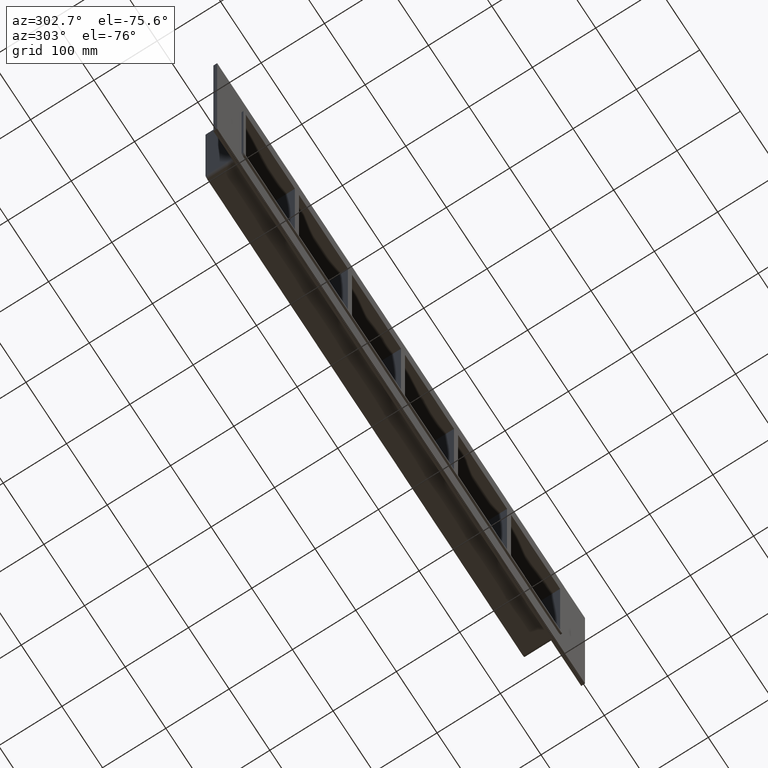
[diagram: clean part render]
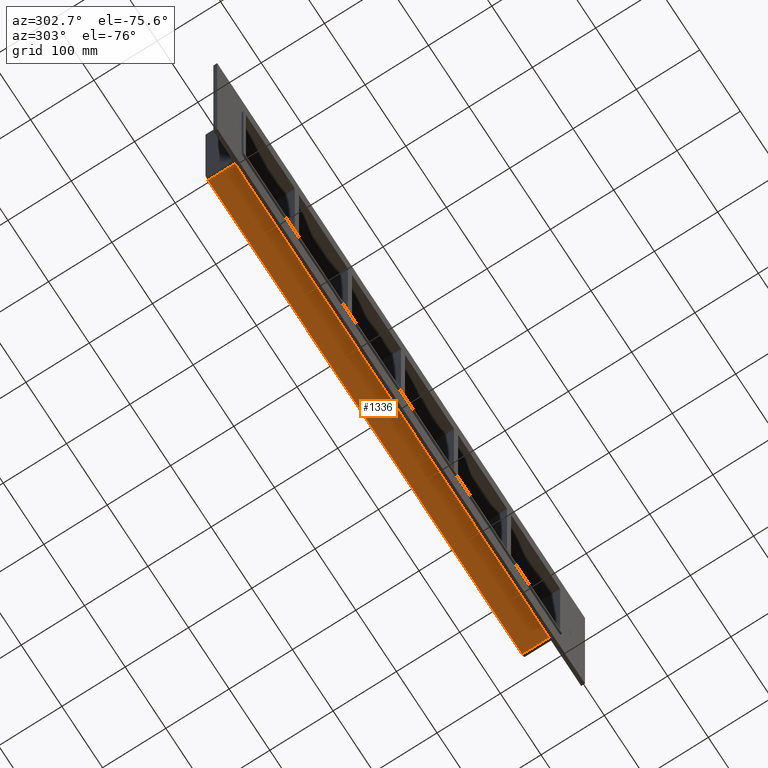
[diagram: same view with one face highlighted and labeled with its STEP entity id]
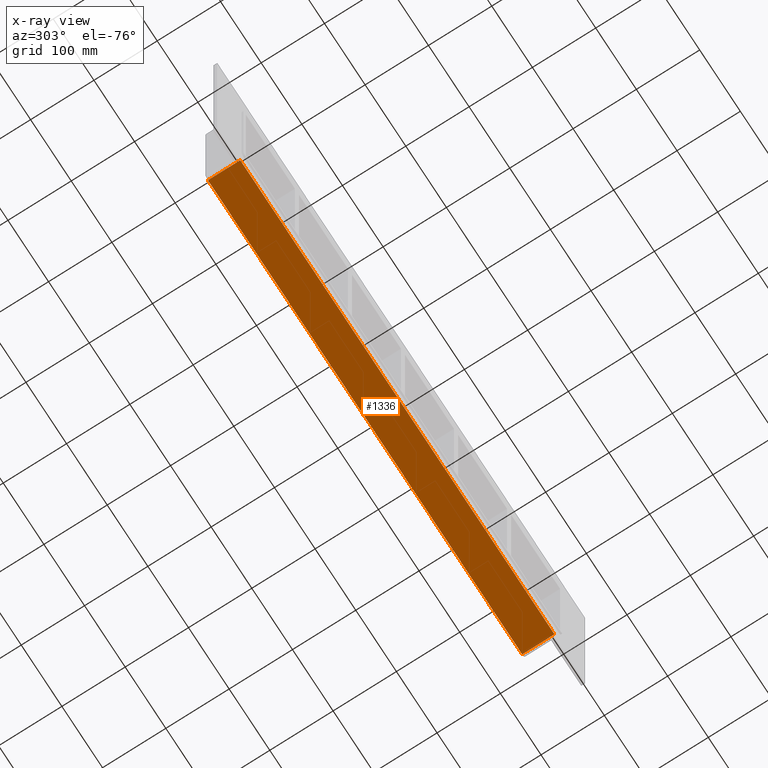
[diagram: x-ray of the same camera — body ghosted, the highlighted face saturated]
A machine part, auxiliary view. The second image highlights one B-rep face of the part: STEP entity #1336.
The next image is the same camera in x-ray: the body ghosted, the highlighted face saturated — about 0% of this face is hidden behind the body in this view.
In plain terms, the highlighted planar face has unit normal (0, 0, -1).
Its self-contained STEP definition (entity closure, byte-faithful):
#807=CARTESIAN_POINT('',(-386.50000000000011,6.000000000000001,-115.0));
#808=VERTEX_POINT('',#807);
#818=CARTESIAN_POINT('',(386.50000000000006,6.000000000000001,-115.0));
#819=VERTEX_POINT('',#818);
#820=CARTESIAN_POINT('',(386.50000000000006,6.000000000000001,-115.0));
#821=DIRECTION('',(-1.0,0.0,0.0));
#822=VECTOR('',#821,773.00000000000023);
#823=LINE('',#820,#822);
#824=EDGE_CURVE('',#819,#808,#823,.T.);
#1245=CARTESIAN_POINT('',(386.50000000000006,57.0,-115.0));
#1246=VERTEX_POINT('',#1245);
#1247=CARTESIAN_POINT('',(386.50000000000006,6.000000000000001,-115.0));
#1248=DIRECTION('',(0.0,1.0,0.0));
#1249=VECTOR('',#1248,51.0);
#1250=LINE('',#1247,#1249);
#1251=EDGE_CURVE('',#819,#1246,#1250,.T.);
#1313=CARTESIAN_POINT('',(392.50000000000006,0.0,-115.0));
#1314=DIRECTION('',(0.0,0.0,-1.0));
#1315=DIRECTION('',(-1.0,0.0,0.0));
#1316=AXIS2_PLACEMENT_3D('',#1313,#1314,#1315);
#1317=PLANE('',#1316);
#1318=ORIENTED_EDGE('',*,*,#824,.T.);
#1319=CARTESIAN_POINT('',(-386.50000000000023,57.0,-115.0));
#1320=VERTEX_POINT('',#1319);
#1321=CARTESIAN_POINT('',(-386.50000000000011,57.0,-115.0));
#1322=DIRECTION('',(0.0,-1.0,0.0));
#1323=VECTOR('',#1322,51.0);
#1324=LINE('',#1321,#1323);
#1325=EDGE_CURVE('',#1320,#808,#1324,.T.);
#1326=ORIENTED_EDGE('',*,*,#1325,.F.);
#1327=CARTESIAN_POINT('',(386.5,57.0,-115.0));
#1328=DIRECTION('',(-1.0,0.0,0.0));
#1329=VECTOR('',#1328,773.00000000000023);
#1330=LINE('',#1327,#1329);
#1331=EDGE_CURVE('',#1246,#1320,#1330,.T.);
#1332=ORIENTED_EDGE('',*,*,#1331,.F.);
#1333=ORIENTED_EDGE('',*,*,#1251,.F.);
#1334=EDGE_LOOP('',(#1318,#1326,#1332,#1333));
#1335=FACE_OUTER_BOUND('',#1334,.T.);
#1336=ADVANCED_FACE('',(#1335),#1317,.T.);